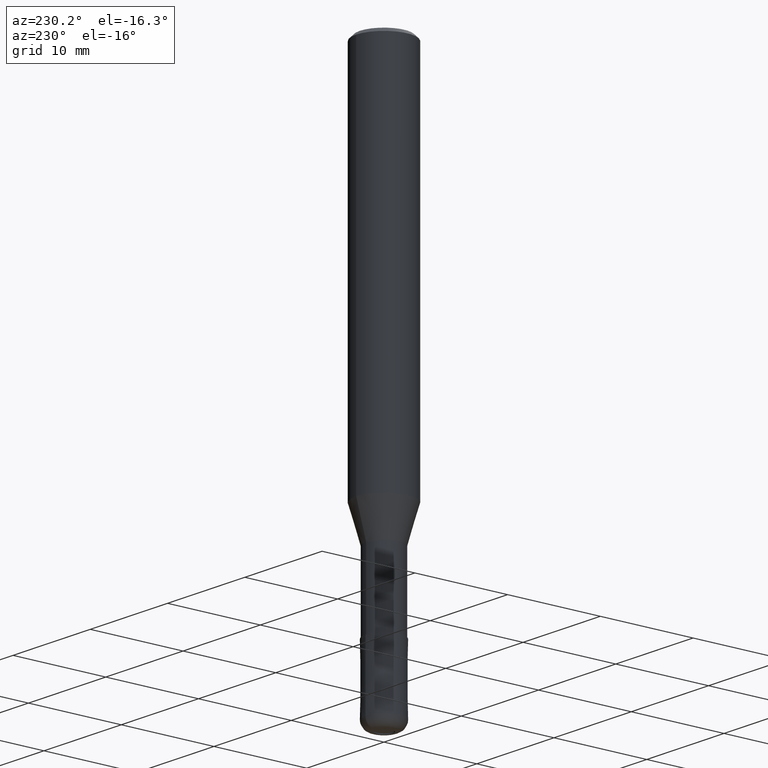
[diagram: clean part render]
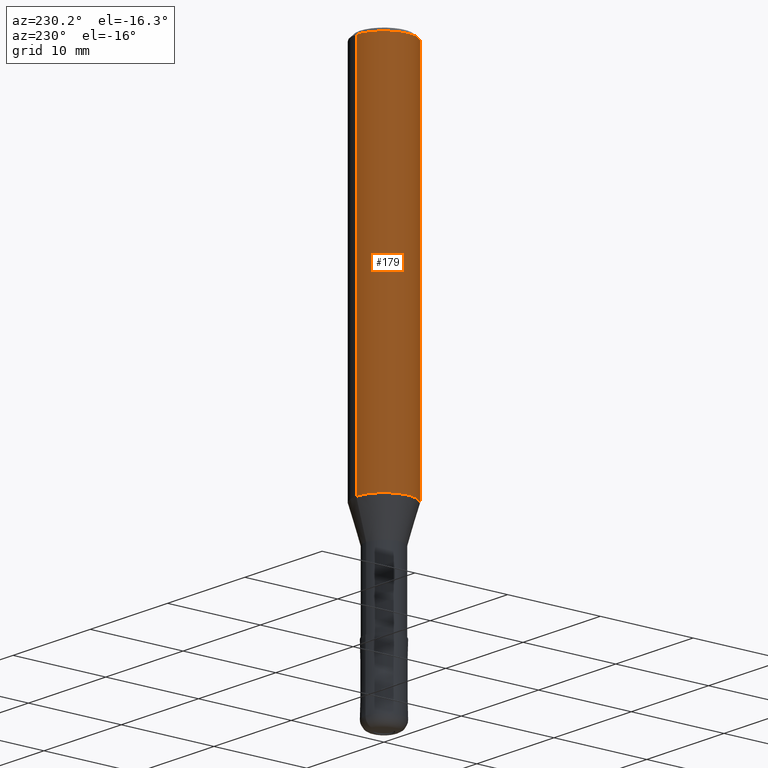
[diagram: same view with one face highlighted and labeled with its STEP entity id]
A machine part, auxiliary view. The second image highlights one B-rep face of the part: STEP entity #179.
In plain terms, the highlighted cylindrical surface (edge-blend (fillet) strip) has radius 3 mm, axis along (-0, -0, 1).
Its self-contained STEP definition (entity closure, byte-faithful):
#143=VERTEX_POINT('',#352);
#179=ADVANCED_FACE('',(#390),#391,.T.);
#189=EDGE_CURVE('',#293,#143,#402,.T.);
#217=EDGE_CURVE('',#237,#263,#435,.T.);
#237=VERTEX_POINT('',#460);
#241=EDGE_CURVE('',#293,#237,#464,.T.);
#263=VERTEX_POINT('',#487);
#277=EDGE_CURVE('',#263,#143,#503,.T.);
#293=VERTEX_POINT('',#521);
#352=CARTESIAN_POINT('',(0.0,3.0,-40.251));
#390=FACE_OUTER_BOUND('',#625,.T.);
#391=CYLINDRICAL_SURFACE('',#626,3.0);
#402=CIRCLE('',#641,3.0);
#435=CIRCLE('',#685,3.0);
#460=CARTESIAN_POINT('',(3.67381906146713E-016,-3.0,-0.399999999999999));
#464=LINE('',#723,#724);
#487=CARTESIAN_POINT('',(0.0,3.0,-0.399999999999999));
#503=LINE('',#772,#773);
#521=CARTESIAN_POINT('',(3.67381906146713E-016,-3.0,-40.251));
#625=EDGE_LOOP('',(#892,#893,#894,#895));
#626=AXIS2_PLACEMENT_3D('',#896,#897,#898);
#641=AXIS2_PLACEMENT_3D('',#909,#910,#911);
#685=AXIS2_PLACEMENT_3D('',#959,#960,#961);
#723=CARTESIAN_POINT('',(3.67381906146713E-016,-3.0,-20.3255));
#724=VECTOR('',#1000,1.0);
#772=CARTESIAN_POINT('',(-3.67381906146713E-016,3.0,-20.3255));
#773=VECTOR('',#1041,1.0);
#892=ORIENTED_EDGE('',*,*,#277,.T.);
#893=ORIENTED_EDGE('',*,*,#189,.F.);
#894=ORIENTED_EDGE('',*,*,#241,.T.);
#895=ORIENTED_EDGE('',*,*,#217,.T.);
#896=CARTESIAN_POINT('',(0.0,0.0,-20.3255));
#897=DIRECTION('',(-0.0,-0.0,1.0));
#898=DIRECTION('',(0.0,1.0,0.0));
#909=CARTESIAN_POINT('',(0.0,0.0,-40.251));
#910=DIRECTION('',(0.0,0.0,-1.0));
#911=DIRECTION('',(0.0,1.0,0.0));
#959=CARTESIAN_POINT('',(0.0,0.0,-0.399999999999999));
#960=DIRECTION('',(0.0,0.0,-1.0));
#961=DIRECTION('',(0.0,1.0,0.0));
#1000=DIRECTION('',(-0.0,-0.0,1.0));
#1041=DIRECTION('',(0.0,0.0,-1.0));